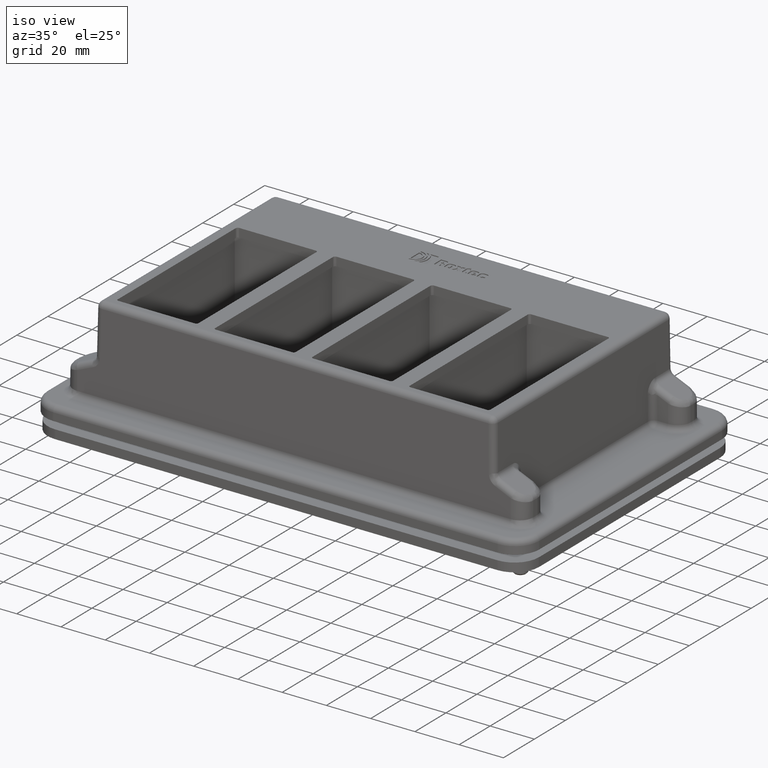
[diagram: clean part render]
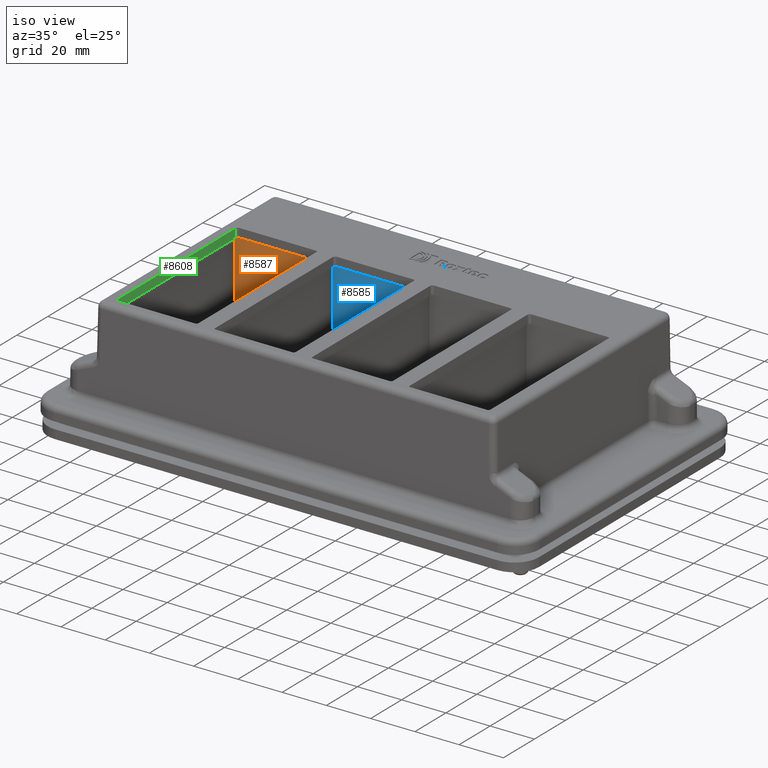
[diagram: same view with three faces highlighted in distinct colors, each labeled with its STEP entity id]
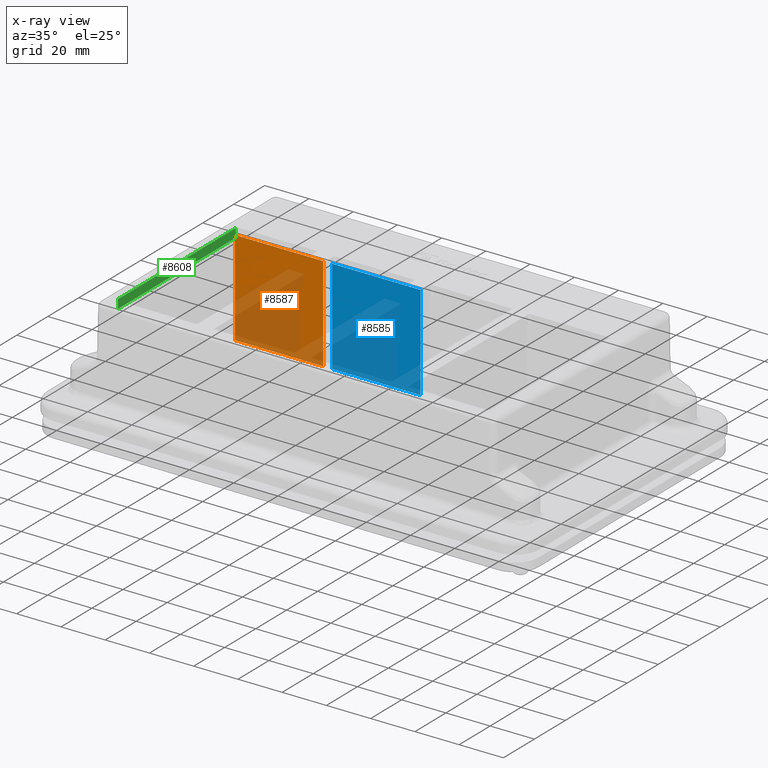
[diagram: x-ray of the same camera — body ghosted, the three highlighted faces saturated]
A machine part, iso view with three faces highlighted in distinct colors.
The next image is the same camera in x-ray (body ghosted, the three faces saturated) — at least one of them is partly hidden behind the body in this view.
Their STEP definitions:

[orange] entity #8587 — the highlighted planar face has unit normal (0, -1, 0).
#505=LINE('',#12922,#1242);
#506=LINE('',#12924,#1243);
#507=LINE('',#12926,#1244);
#508=LINE('',#12927,#1245);
#1242=VECTOR('',#10468,10.);
#1243=VECTOR('',#10469,10.);
#1244=VECTOR('',#10470,10.);
#1245=VECTOR('',#10471,10.);
#2126=FACE_OUTER_BOUND('',#2635,.T.);
#2635=EDGE_LOOP('',(#6024,#6025,#6026,#6027));
#3551=VERTEX_POINT('',#12920);
#3552=VERTEX_POINT('',#12921);
#3553=VERTEX_POINT('',#12923);
#3554=VERTEX_POINT('',#12925);
#4456=EDGE_CURVE('',#3551,#3552,#505,.T.);
#4457=EDGE_CURVE('',#3553,#3551,#506,.T.);
#4458=EDGE_CURVE('',#3554,#3553,#507,.T.);
#4459=EDGE_CURVE('',#3552,#3554,#508,.T.);
#6024=ORIENTED_EDGE('',*,*,#4456,.F.);
#6025=ORIENTED_EDGE('',*,*,#4457,.F.);
#6026=ORIENTED_EDGE('',*,*,#4458,.F.);
#6027=ORIENTED_EDGE('',*,*,#4459,.F.);
#7767=PLANE('',#9233);
#8587=ADVANCED_FACE('',(#2126),#7767,.T.);
#9233=AXIS2_PLACEMENT_3D('',#12919,#10466,#10467);
#10466=DIRECTION('center_axis',(0.,-1.,0.));
#10467=DIRECTION('ref_axis',(1.,0.,1.22464679914735E-16));
#10468=DIRECTION('',(1.,0.,1.22464679914735E-16));
#10469=DIRECTION('',(-1.22464679914735E-16,0.,1.));
#10470=DIRECTION('',(-1.,0.,-1.22464679914735E-16));
#10471=DIRECTION('',(1.22464679914735E-16,0.,-1.));
#12919=CARTESIAN_POINT('Origin',(-86.,26.5,-43.));
#12920=CARTESIAN_POINT('',(-86.,26.5,-8.88178419700125E-15));
#12921=CARTESIAN_POINT('',(-46.,26.5,-2.22044604925031E-15));
#12922=CARTESIAN_POINT('',(-9.99999999999999,26.5,0.));
#12923=CARTESIAN_POINT('',(-86.,26.5,-43.));
#12924=CARTESIAN_POINT('',(-86.,26.5,-43.));
#12925=CARTESIAN_POINT('',(-46.,26.5,-43.));
#12926=CARTESIAN_POINT('',(-46.,26.5,-43.));
#12927=CARTESIAN_POINT('',(-46.,26.5,-43.));

[blue] entity #8585 — the highlighted planar face has unit normal (0, -1, 0).
#497=LINE('',#12904,#1234);
#498=LINE('',#12906,#1235);
#499=LINE('',#12908,#1236);
#500=LINE('',#12909,#1237);
#1234=VECTOR('',#10456,10.);
#1235=VECTOR('',#10457,10.);
#1236=VECTOR('',#10458,10.);
#1237=VECTOR('',#10459,10.);
#2124=FACE_OUTER_BOUND('',#2633,.T.);
#2633=EDGE_LOOP('',(#6016,#6017,#6018,#6019));
#3543=VERTEX_POINT('',#12902);
#3544=VERTEX_POINT('',#12903);
#3545=VERTEX_POINT('',#12905);
#3546=VERTEX_POINT('',#12907);
#4448=EDGE_CURVE('',#3543,#3544,#497,.T.);
#4449=EDGE_CURVE('',#3545,#3543,#498,.T.);
#4450=EDGE_CURVE('',#3546,#3545,#499,.T.);
#4451=EDGE_CURVE('',#3544,#3546,#500,.T.);
#6016=ORIENTED_EDGE('',*,*,#4448,.F.);
#6017=ORIENTED_EDGE('',*,*,#4449,.F.);
#6018=ORIENTED_EDGE('',*,*,#4450,.F.);
#6019=ORIENTED_EDGE('',*,*,#4451,.F.);
#7765=PLANE('',#9231);
#8585=ADVANCED_FACE('',(#2124),#7765,.T.);
#9231=AXIS2_PLACEMENT_3D('',#12901,#10454,#10455);
#10454=DIRECTION('center_axis',(0.,-1.,0.));
#10455=DIRECTION('ref_axis',(1.,0.,1.22464679914735E-16));
#10456=DIRECTION('',(1.,0.,1.22464679914735E-16));
#10457=DIRECTION('',(-1.22464679914735E-16,0.,1.));
#10458=DIRECTION('',(-1.,0.,-1.22464679914735E-16));
#10459=DIRECTION('',(1.22464679914735E-16,0.,-1.));
#12901=CARTESIAN_POINT('Origin',(-42.,26.5,-43.));
#12902=CARTESIAN_POINT('',(-42.,26.5,-2.22044604925031E-15));
#12903=CARTESIAN_POINT('',(-2.00000000000001,26.5,4.44089209850063E-15));
#12904=CARTESIAN_POINT('',(12.,26.5,4.44089209850063E-15));
#12905=CARTESIAN_POINT('',(-42.,26.5,-43.));
#12906=CARTESIAN_POINT('',(-42.,26.5,-43.));
#12907=CARTESIAN_POINT('',(-2.00000000000001,26.5,-43.));
#12908=CARTESIAN_POINT('',(-2.00000000000001,26.5,-43.));
#12909=CARTESIAN_POINT('',(-2.00000000000001,26.5,-43.));

[green] entity #8608 — the highlighted planar face has unit normal (-1, 0, -0).
#569=LINE('',#13065,#1306);
#594=LINE('',#13143,#1331);
#595=LINE('',#13145,#1332);
#596=LINE('',#13146,#1333);
#1306=VECTOR('',#10566,10.);
#1331=VECTOR('',#10639,10.);
#1332=VECTOR('',#10640,10.);
#1333=VECTOR('',#10641,10.);
#2147=FACE_OUTER_BOUND('',#2668,.T.);
#2668=EDGE_LOOP('',(#6164,#6165,#6166,#6167));
#3613=VERTEX_POINT('',#13061);
#3614=VERTEX_POINT('',#13063);
#3643=VERTEX_POINT('',#13142);
#3644=VERTEX_POINT('',#13144);
#4528=EDGE_CURVE('',#3614,#3613,#569,.T.);
#4565=EDGE_CURVE('',#3643,#3614,#594,.T.);
#4566=EDGE_CURVE('',#3644,#3643,#595,.T.);
#4567=EDGE_CURVE('',#3613,#3644,#596,.T.);
#6164=ORIENTED_EDGE('',*,*,#4528,.F.);
#6165=ORIENTED_EDGE('',*,*,#4565,.F.);
#6166=ORIENTED_EDGE('',*,*,#4566,.F.);
#6167=ORIENTED_EDGE('',*,*,#4567,.F.);
#7780=PLANE('',#9274);
#8608=ADVANCED_FACE('',(#2147),#7780,.F.);
#9274=AXIS2_PLACEMENT_3D('',#13141,#10637,#10638);
#10566=DIRECTION('',(1.22464679914735E-16,0.,-1.));
#10637=DIRECTION('center_axis',(-1.,1.07009448156642E-16,-1.22464679914735E-16));
#10638=DIRECTION('ref_axis',(-1.07009448156642E-16,-1.,-1.31048778163556E-32));
#10639=DIRECTION('',(1.07009448156642E-16,1.,1.31048778163556E-32));
#10640=DIRECTION('',(-1.22464679914735E-16,0.,1.));
#10641=DIRECTION('',(-1.07009448156642E-16,-1.,-1.31048778163556E-32));
#13061=CARTESIAN_POINT('',(-84.25,24.5,-1.11022302462516E-14));
#13063=CARTESIAN_POINT('',(-84.25,24.5,3.99999999999999));
#13065=CARTESIAN_POINT('',(-84.25,24.5,-1.11022302462516E-14));
#13141=CARTESIAN_POINT('Origin',(-84.25,30.5,-1.11022302462516E-14));
#13142=CARTESIAN_POINT('',(-84.25,-51.5,3.99999999999999));
#13143=CARTESIAN_POINT('',(-84.25,15.25,3.99999999999999));
#13144=CARTESIAN_POINT('',(-84.25,-51.5,-1.11022302462516E-14));
#13145=CARTESIAN_POINT('',(-84.25,-51.5,-1.11022302462516E-14));
#13146=CARTESIAN_POINT('',(-84.25,15.25,-1.11022302462516E-14));